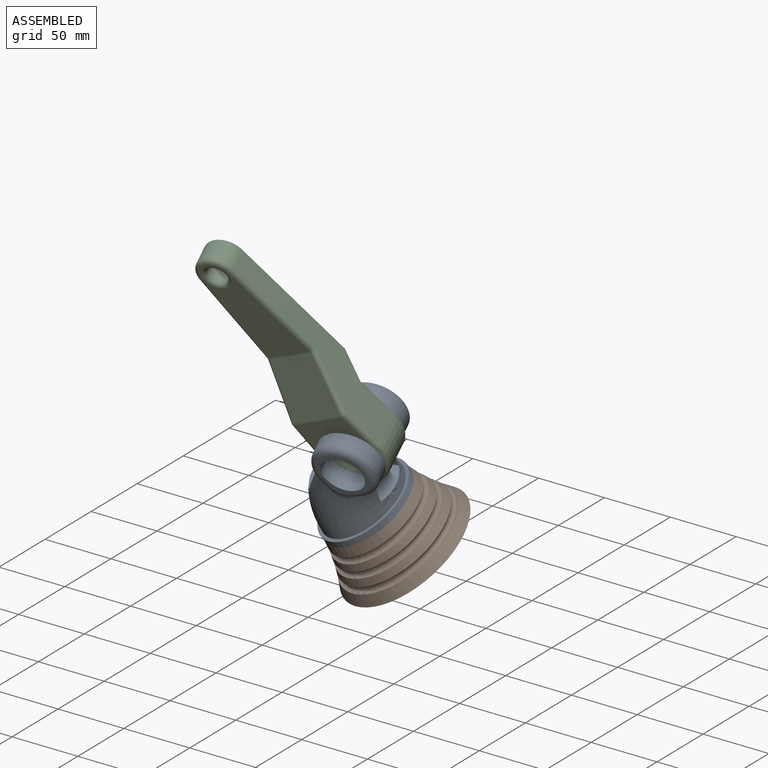
[diagram: assembled view]
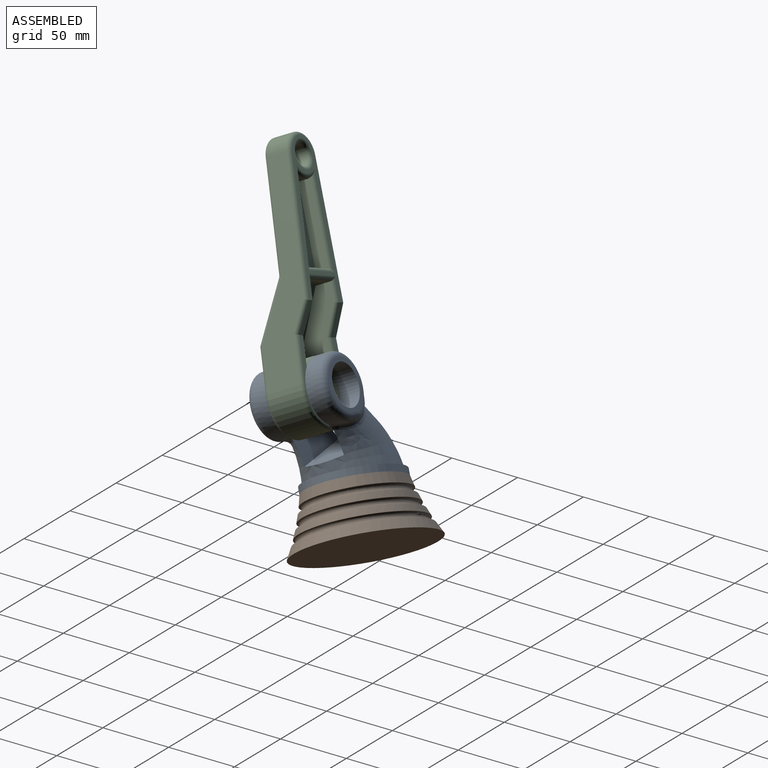
[diagram: assembled view, second angle]
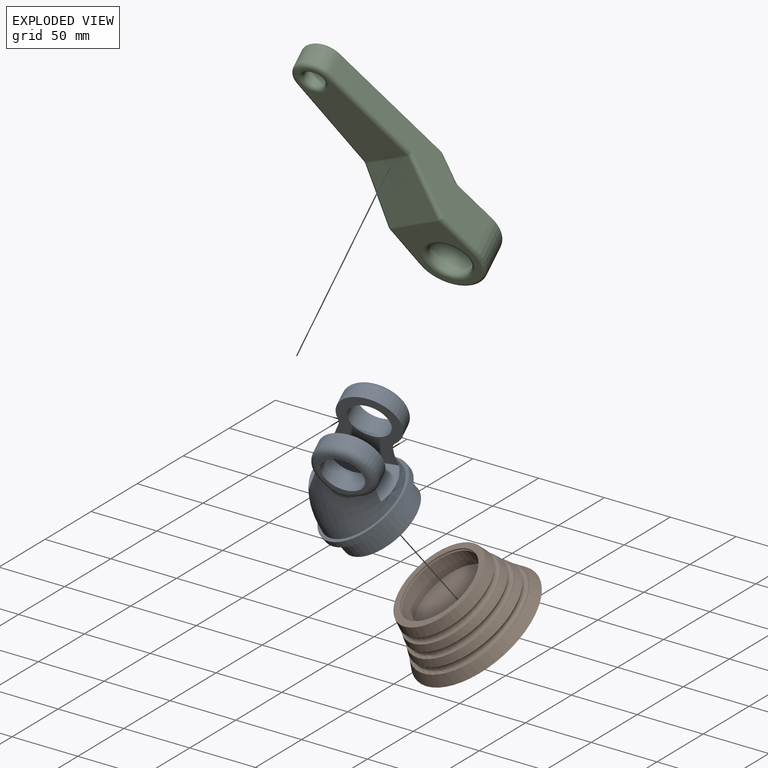
[diagram: exploded view]
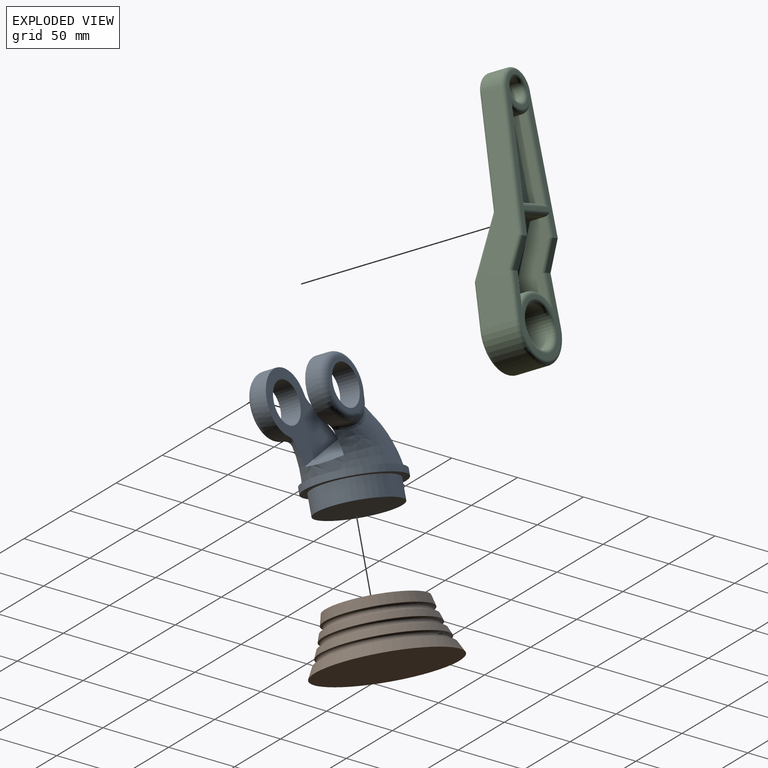
[diagram: exploded view, second angle]
ASSEMBLY  parts=3 mates=2
PART A: 29 faces, bbox 98x71.2x95.6 mm
  f0: bspline ~81.29x65mm, area 6120.1mm2, adj f2,f3,f5,f11,f12,f13,f14,f24
  f1: cylinder r=22.7mm len=45.41mm, axis (0,1,0), area 1040.1mm2, adj f2,f3,f15,f24
  f2: bspline ~23.84x19.64mm, area 117mm2, adj f0,f1,f14,f16,f24
  f3: bspline ~22.04x19.98mm, area 115.8mm2, adj f0,f1,f14,f17,f24
  f4: cylinder r=15mm len=30mm, axis (0,-1,0), area 1413.7mm2, adj f10,f24
  f5: plane 70x70mm, normal (0,0,1), area 530.2mm2, adj f0,f6
  f6: cylinder r=35mm len=70mm, axis (0,0,-1), area 1099.6mm2, adj f5,f7
  f7: plane 70x70mm, normal (0,0,-1), area 1021mm2, adj f6,f28
  f8: cylinder r=22.7mm len=45.41mm, axis (0,1,0), area 1040.1mm2, adj f12,f13,f21,f25
  f9: plane 35.41x35.41mm, normal (0,-1,0), area 303.9mm2, adj f19,f20,f21,f22,f23
  f10: plane 35.41x35.41mm, normal (0,1,0), area 303.9mm2, adj f4,f15,f16,f17,f18
  f11: bspline ~15.97x15mm, area 67.6mm2, adj f0,f12,f13,f20
  f12: bspline ~23.32x19.36mm, area 117mm2, adj f0,f8,f11,f19,f25
  f13: bspline ~22.29x20.61mm, area 115.8mm2, adj f0,f8,f11,f22,f25
  f14: bspline ~15.62x15.11mm, area 67.6mm2, adj f0,f2,f3,f18
  f15: torus R=17.7mm, axis (0,-1,0), area 816.8mm2, adj f1,f10,f16,f17
  f16: bspline ~12.6x7.36mm, area 55.3mm2, adj f2,f10,f15,f18
  f17: bspline ~13.26x8.01mm, area 52.5mm2, adj f3,f10,f15,f18
  f18: bspline ~11.06x10.71mm, area 51.9mm2, adj f10,f14,f16,f17
  f19: bspline ~11.1x6.66mm, area 55.3mm2, adj f9,f12,f20,f21
  f20: bspline ~11.04x10.84mm, area 51.9mm2, adj f9,f11,f19,f22
  f21: torus R=17.7mm, axis (0,-1,0), area 816.8mm2, adj f8,f9,f19,f22
  f22: bspline ~14.38x8.32mm, area 52.5mm2, adj f9,f13,f20,f21
  f23: cylinder r=15mm len=30mm, axis (0,-1,0), area 1413.7mm2, adj f9,f25
  f24: plane 75.21x63.98mm, normal (0,-1,0), area 1884mm2, adj f0,f1,f2,f3,f4,f26
  f25: plane 75.21x63.98mm, normal (0,1,0), area 1884mm2, adj f0,f8,f12,f13,f23,f26
  f26: plane 53.64x31.16mm, normal (0.42,0,0.91), area 1655.7mm2, adj f0,f24,f25
  f27: plane 60x60mm, normal (0,0,-1), area 2827.4mm2, adj f28
  f28: cylinder r=30mm len=60mm, axis (0,0,1), area 2827.4mm2, adj f7,f27
PART B: 15 faces, bbox 162.4x162.4x106.5 mm
  f0: torus R=37.56mm, axis (0,0,-1), area 1787.8mm2, adj f1,f14
  f1: torus R=181.52mm, axis (0,0,-1), area 1765mm2, adj f0,f2
  f2: plane 70x70mm, normal (0,0,1), area 1021mm2, adj f1,f3
  f3: cylinder r=30mm len=60mm, axis (0,0,-1), area 188.5mm2, adj f2,f4
  f4: plane 62x62mm, normal (0,0,-1), area 191.6mm2, adj f3,f5
  f5: cylinder r=31mm len=62mm, axis (0,0,-1), area 194.8mm2, adj f4,f6
  f6: plane 62x62mm, normal (0,0,1), area 191.6mm2, adj f5,f7
  f7: cylinder r=30mm len=60mm, axis (0,0,-1), area 2450.4mm2, adj f6,f8
  f8: plane 60x60mm, normal (0,0,1), area 2827.4mm2, adj f7
  f9: plane 100x100mm, normal (0,0,-1), area 7854mm2, adj f10
  f10: torus R=181.52mm, axis (0,0,-1), area 2619.1mm2, adj f9,f11
  f11: torus R=44.99mm, axis (0,0,-1), area 2160.5mm2, adj f10,f12
  f12: torus R=181.52mm, axis (0,0,-1), area 1566.5mm2, adj f11,f13
  f13: torus R=40.87mm, axis (0,0,-1), area 1953.8mm2, adj f12,f14
  f14: torus R=181.52mm, axis (0,0,-1), area 1361.3mm2, adj f0,f13
PART C: 62 faces, bbox 54.1x40x193.3 mm
  f0: plane 59.06x9mm, normal (1,0,0), area 531.5mm2, adj f19,f20,f22,f34
  f1: plane 60.11x9mm, normal (-0.99,0,-0.13), area 545.8mm2, adj f19,f20,f22,f33
  f2: plane 36x29.72mm, normal (0,0.89,-0.45), area 1099.1mm2, adj f16,f17,f18,f23
  f3: plane 107.01x36.83mm, normal (0,1,0), area 546mm2, adj f5,f6,f27,f29,f31,f32,f33,f34
  f4: plane 57.02x44.01mm, normal (0,1,0), area 511.3mm2, adj f5,f6,f24,f26,f28,f37,f58,f59
  f5: plane 20.02x10.01mm, normal (0,0.89,-0.45), area 45.1mm2, adj f3,f4,f24,f25,f27,f59
  f6: plane 20x10mm, normal (0,0.89,-0.45), area 44.7mm2, adj f3,f4,f30,f56
  f7: plane 150x34mm, normal (-1,0,0), area 2728.9mm2, adj f10,f11,f40,f45,f47,f50,f54,f56
  f8: plane 56.29x44mm, normal (0,-1,0), area 1179mm2, adj f36,f40,f41,f43,f44
  f9: plane 148.67x34mm, normal (0.99,0,0.13), area 2705.1mm2, adj f10,f11,f43,f48,f51,f53,f57,f59
  f10: cylinder r=15mm len=29.87mm, axis (0,1,0), area 631.8mm2, adj f7,f9,f52,f55
  f11: cylinder r=25mm len=50mm, axis (0,1,0), area 1964.8mm2, adj f7,f9,f41,f60
  f12: plane 86.29x34.06mm, normal (0,-1,0), area 2040.4mm2, adj f38,f49,f50,f52,f53
  f13: plane 39.6x38.73mm, normal (0,-0.89,0.45), area 1602.7mm2, adj f44,f45,f48,f49
  f14: cylinder r=7.5mm len=15mm, axis (0,1,0), area 659.7mm2, adj f38,f39
  f15: cylinder r=15mm len=30mm, axis (0,1,0), area 2261.9mm2, adj f36,f37
  f16: plane 53.62x29mm, normal (1,0,0), area 928.8mm2, adj f2,f17,f21,f23,f28,f30,f31
  f17: plane 31.79x17.62mm, normal (0,1,0), area 369.9mm2, adj f2,f16,f18,f21
  f18: plane 51.5x29mm, normal (-0.99,0,-0.13), area 900.5mm2, adj f2,f17,f21,f23,f24,f25,f27
  f19: plane 60.11x23.82mm, normal (0,1,0), area 1158.7mm2, adj f0,f1,f20,f22
  f20: cylinder r=15.5mm len=15.77mm, axis (0,1,0), area 149.3mm2, adj f0,f1,f19,f32
  f21: cylinder r=23mm len=31.79mm, axis (0,1,0), area 668.8mm2, adj f16,f17,f18,f26
  f22: plane 23.82x9mm, normal (0,0,1), area 214.4mm2, adj f0,f1,f19,f35
  f23: plane 24.9x11mm, normal (0,0,-1), area 273.9mm2, adj f2,f16,f18,f29
  f24: cylinder r=3mm len=33.45mm, axis (0.13,0,-0.99), area 99.4mm2, adj f4,f5,f18,f25,f26
  f25: cylinder r=3mm len=21.6mm, axis (0.12,-0.44,-0.89), area 102.1mm2, adj f5,f18,f24,f27
  f26: torus R=20mm, axis (0,-1,0), area 191.3mm2, adj f4,f21,f24,f28
  f27: cylinder r=3mm len=17.51mm, axis (0.13,0,-0.99), area 72.2mm2, adj f3,f5,f18,f25,f29
  f28: cylinder r=3mm len=35.71mm, axis (0,0,-1), area 110.5mm2, adj f4,f16,f26,f30
  f29: cylinder r=3mm len=30.52mm, axis (1,0,0), area 127mm2, adj f3,f23,f27,f31
  f30: cylinder r=3mm len=21.98mm, axis (0,-0.45,-0.89), area 105.4mm2, adj f6,f16,f28,f31
  f31: cylinder r=3mm len=17.11mm, axis (0,0,1), area 70.4mm2, adj f3,f16,f29,f30
  f32: torus R=12.5mm, axis (0,-1,0), area 90.8mm2, adj f3,f20,f33,f34
  f33: cylinder r=3mm len=70.18mm, axis (0.13,0,-0.99), area 301.3mm2, adj f1,f3,f32,f35
  f34: cylinder r=3mm len=68.39mm, axis (0,0,1), area 293.1mm2, adj f0,f3,f32,f35
  f35: cylinder r=3mm len=30.25mm, axis (-1,0,0), area 123.3mm2, adj f3,f22,f33,f34
  f36: torus R=18mm, axis (0,-1,0), area 476.4mm2, adj f8,f15
  f37: torus R=18mm, axis (0,-1,0), area 476.4mm2, adj f4,f15
  f38: torus R=10.5mm, axis (0,1,0), area 254.3mm2, adj f12,f14
  f39: torus R=10.5mm, axis (0,-1,0), area 254.3mm2, adj f3,f14
  f40: cylinder r=3mm len=34.29mm, axis (0,0,1), area 161.6mm2, adj f7,f8,f41,f42
  f41: torus R=22mm, axis (0,-1,0), area 369mm2, adj f8,f11,f40,f43
  f42: sphere r=3mm, area 4.2mm2, adj f40,f44,f45
  f43: cylinder r=3mm len=31.77mm, axis (0.13,0,-0.99), area 149.2mm2, adj f8,f9,f41,f46
  f44: cylinder r=3mm len=39.6mm, axis (1,0,0), area 55.1mm2, adj f8,f13,f42,f46
  f45: cylinder r=3mm len=40.07mm, axis (0,-0.45,-0.89), area 204.1mm2, adj f7,f13,f42,f47
  f46: sphere r=3mm, area 4mm2, adj f43,f44,f48
  f47: torus R=6mm, axis (1,0,0), area 8.9mm2, adj f7,f45,f49,f50
  f48: cylinder r=3mm len=39.71mm, axis (0.12,-0.44,-0.89), area 197.8mm2, adj f9,f13,f46,f51
  f49: cylinder r=3mm len=34.42mm, axis (1,0,0), area 47.6mm2, adj f12,f13,f47,f51
  f50: cylinder r=3mm len=74.29mm, axis (0,0,-1), area 350.1mm2, adj f7,f12,f47,f52
  f51: bspline ~4.27x3.55mm, area 8.9mm2, adj f9,f48,f49,f53
  f52: torus R=12mm, axis (0,1,0), area 197.2mm2, adj f10,f12,f50,f53
  f53: cylinder r=3mm len=76.28mm, axis (0.13,0,-0.99), area 360.8mm2, adj f9,f12,f51,f52
  f54: cylinder r=3mm len=95mm, axis (0,0,-1), area 446.5mm2, adj f3,f7,f55,f56
  f55: torus R=12mm, axis (0,-1,0), area 197.2mm2, adj f3,f10,f54,f57
  f56: cylinder r=3mm len=21.98mm, axis (0,0.45,0.89), area 105.4mm2, adj f6,f7,f54,f58
  f57: cylinder r=3mm len=96.98mm, axis (-0.13,0,0.99), area 458mm2, adj f3,f9,f55,f59
  f58: cylinder r=3mm len=35.71mm, axis (0,0,1), area 166.1mm2, adj f4,f7,f56,f60
  f59: cylinder r=3mm len=22.37mm, axis (-0.12,0.44,0.89), area 110.1mm2, adj f3,f4,f5,f9,f57,f61
  f60: torus R=22mm, axis (0,-1,0), area 369mm2, adj f4,f11,f58,f61
  f61: cylinder r=3mm len=33.19mm, axis (-0.13,0,0.99), area 153.8mm2, adj f4,f9,f59,f60
PLACE A rot(axis=(0.76,-0.65,0.11),37.3deg) t=(-106.82,-18.37,50.03)mm
PLACE B rot(axis=(0.76,-0.65,0.11),37.3deg) t=(-91.83,0.52,18.11)mm fixed
PLACE C rot(axis=(0.77,-0.63,0.12),36.5deg) t=(-97.47,-23.52,120.1)mm
MATE revolute B.f0 <-> A.f6  axis (-0.37,-0.47,0.8) through (-106.82,-18.37,50.03)mm
MATE revolute A.f1 <-> C.f11  axis (0.17,-0.88,-0.44) through (-93.33,-45.54,109.01)mm
